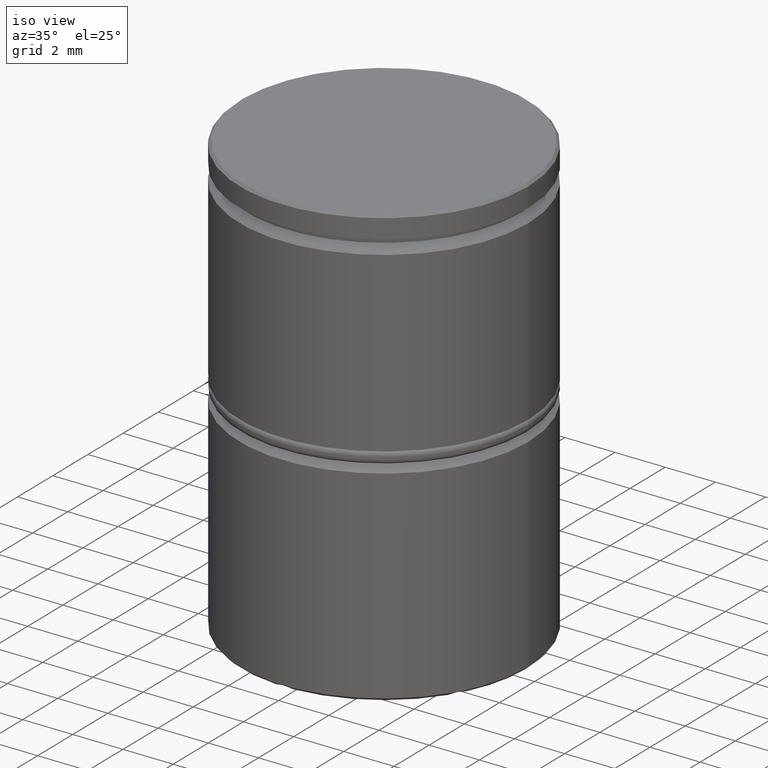
[diagram: clean part render]
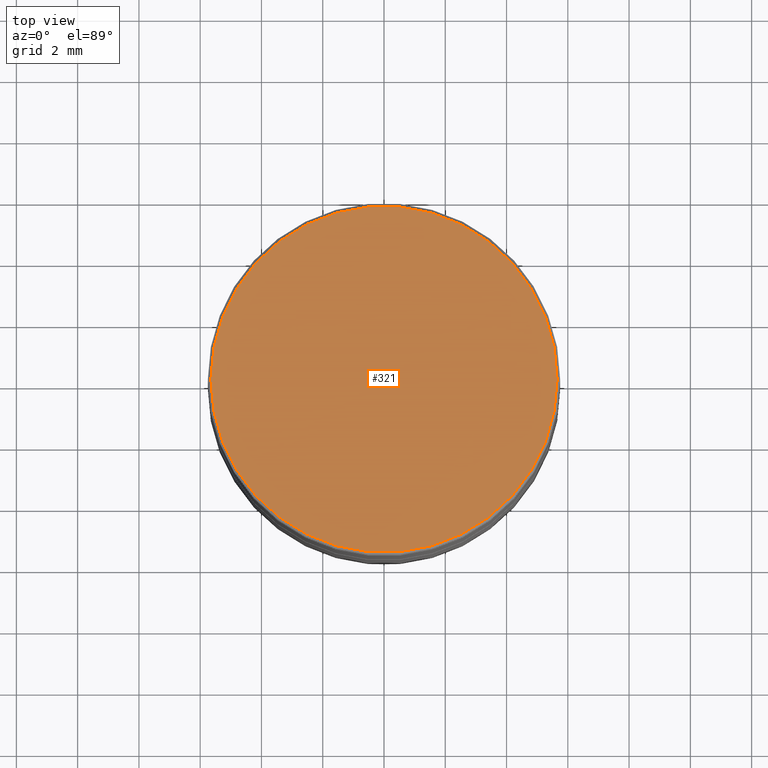
[diagram: tour spotlight — one face highlighted and labeled with its STEP entity id]
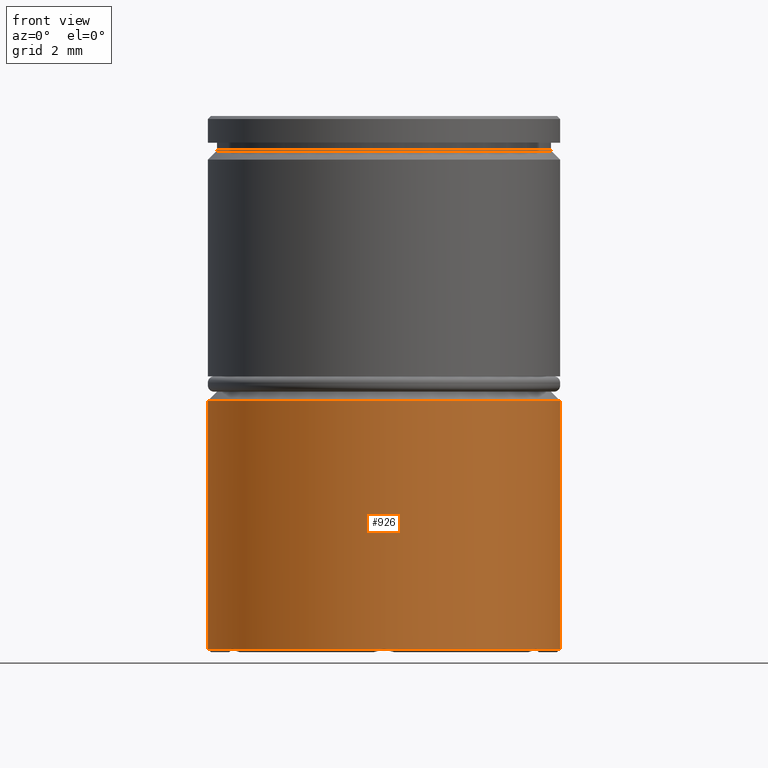
[diagram: tour spotlight — one face highlighted and labeled with its STEP entity id]
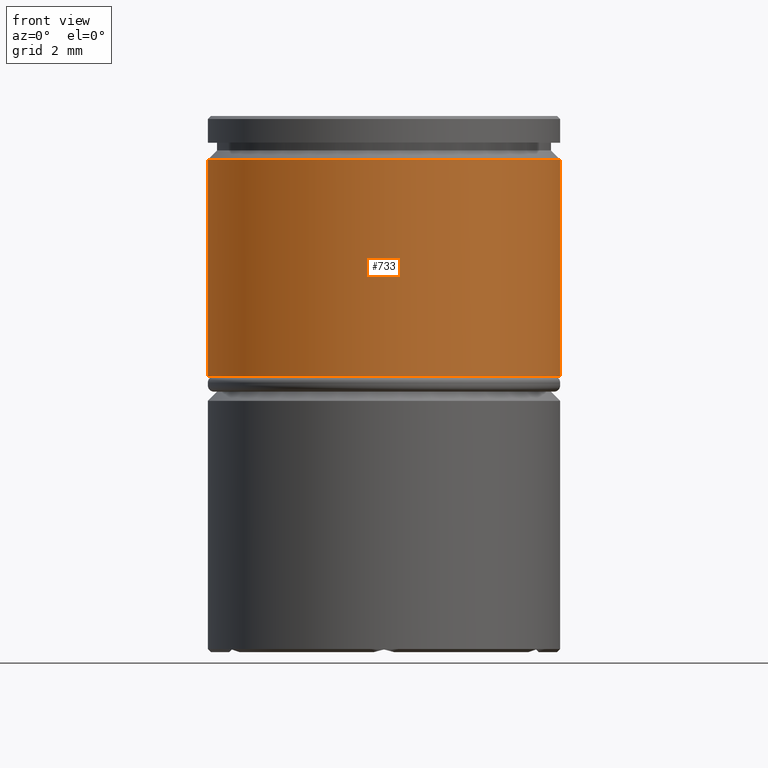
[diagram: tour spotlight — one face highlighted and labeled with its STEP entity id]
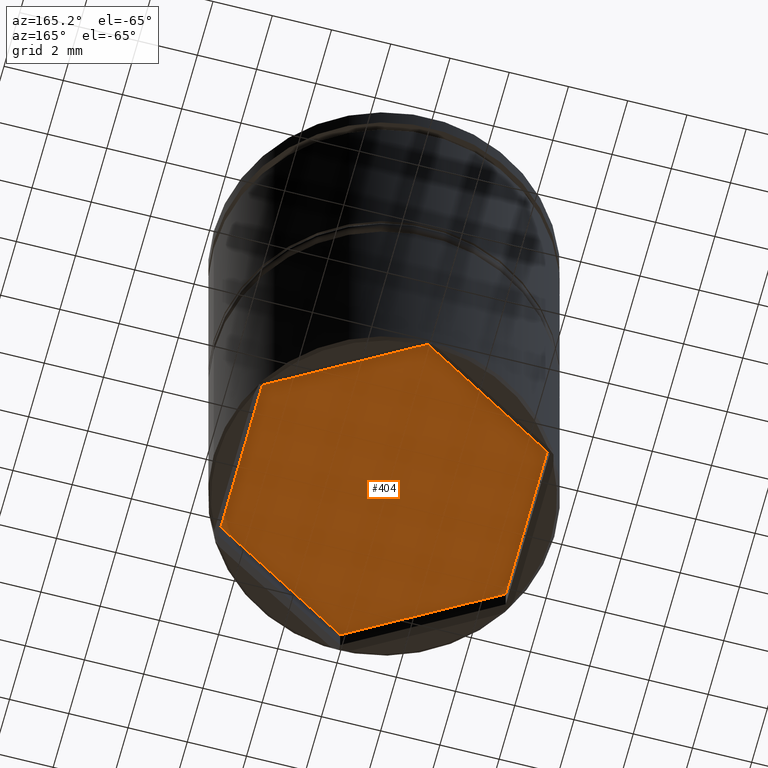
[diagram: tour spotlight — one face highlighted and labeled with its STEP entity id]
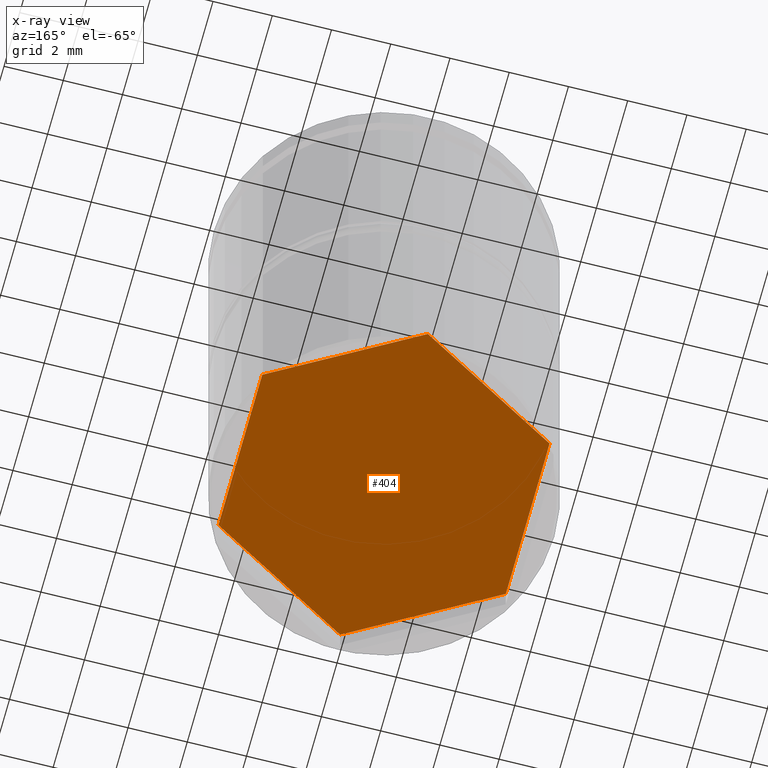
[diagram: x-ray of the same camera — body ghosted, this tour face saturated]
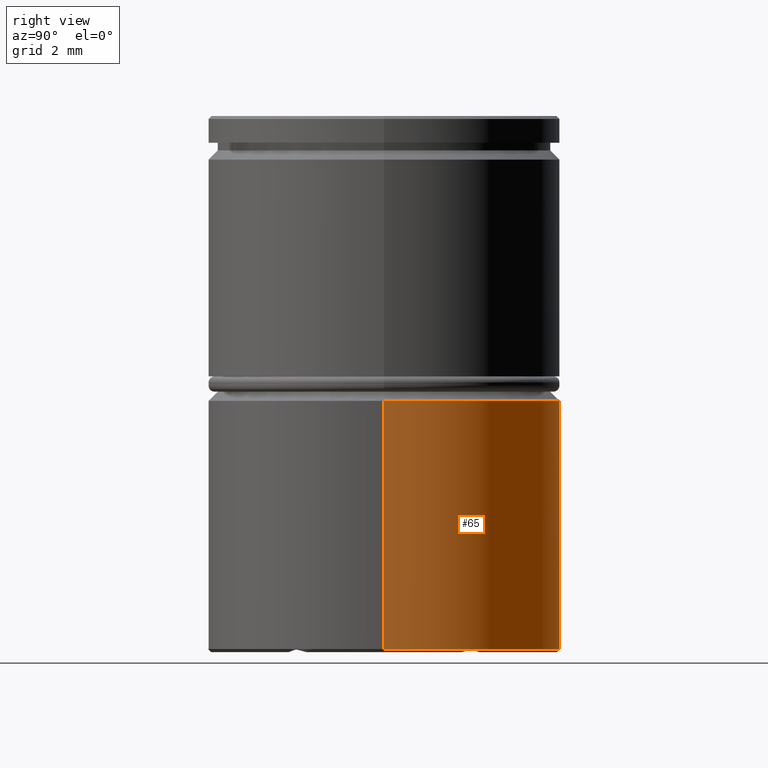
[diagram: tour spotlight — one face highlighted and labeled with its STEP entity id]
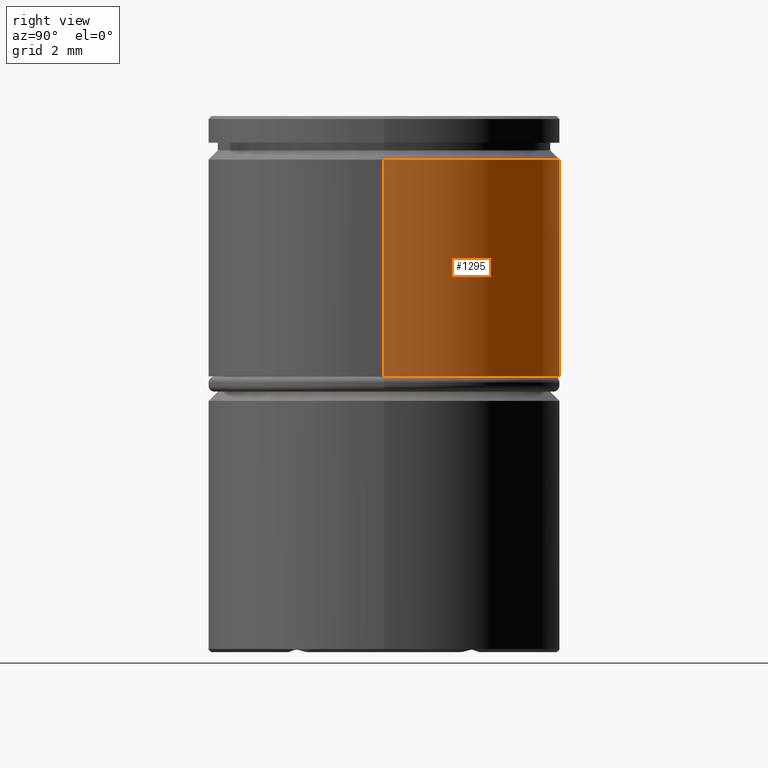
[diagram: tour spotlight — one face highlighted and labeled with its STEP entity id]
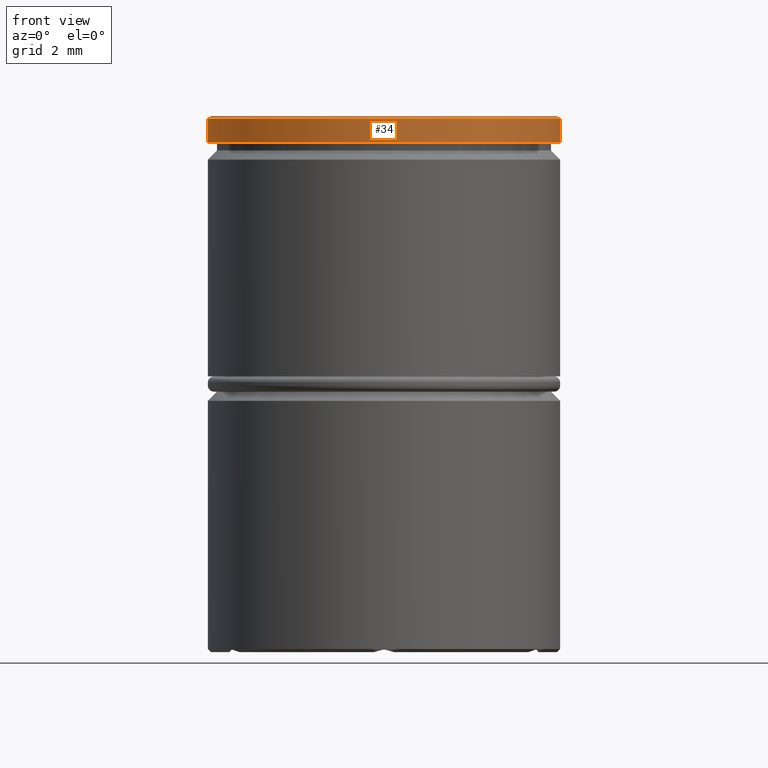
[diagram: tour spotlight — one face highlighted and labeled with its STEP entity id]
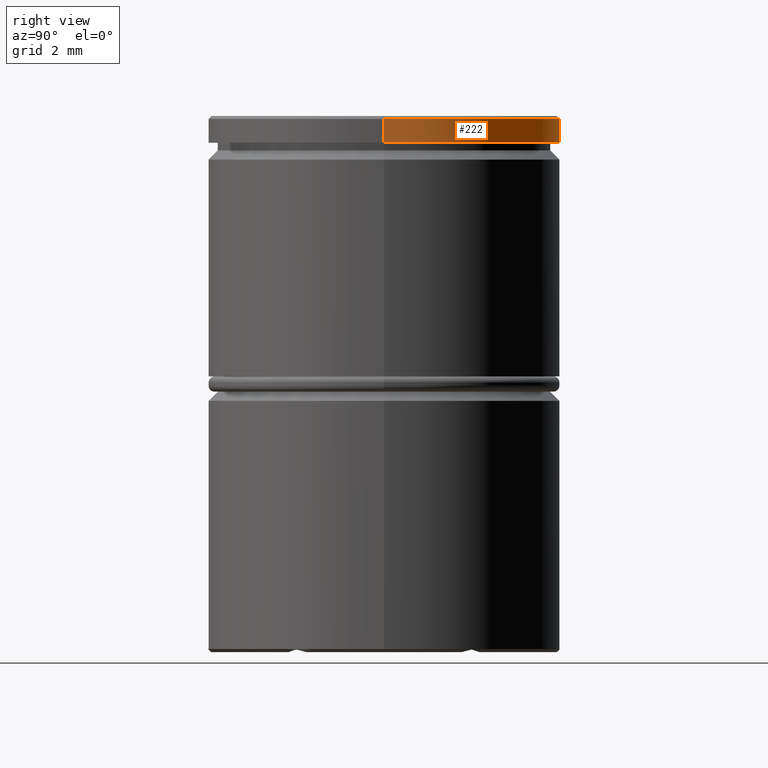
[diagram: tour spotlight — one face highlighted and labeled with its STEP entity id]
A machine part: a face-by-face anatomy tour. The part has 48 B-rep faces; the first image is the clean iso view, then the 8 largest visible faces are spotlighted one at a time (largest first), each with its STEP entity span.

Face 1 — top view, entity #321. In plain terms, the highlighted planar face has unit normal (0, -0, 1).
Definition (entity closure, byte-faithful):
#45 = DIRECTION ( 'NONE',  ( 1.000000000000000000, 0.000000000000000000, 0.000000000000000000 ) ) ;
#100 = DIRECTION ( 'NONE',  ( -0.000000000000000000, -0.000000000000000000, 1.000000000000000000 ) ) ;
#282 = EDGE_CURVE ( 'NONE', #290, #702, #1088, .T. ) ;
#290 = VERTEX_POINT ( 'NONE', #799 ) ;
#316 = PLANE ( 'NONE',  #839 ) ;
#321 = ADVANCED_FACE ( 'NONE', ( #606 ), #316, .T. ) ;
#390 = DIRECTION ( 'NONE',  ( 0.000000000000000000, -0.000000000000000000, 1.000000000000000000 ) ) ;
#423 = EDGE_CURVE ( 'NONE', #702, #290, #1191, .T. ) ;
#499 = AXIS2_PLACEMENT_3D ( 'NONE', #938, #100, #1358 ) ;
#576 = EDGE_LOOP ( 'NONE', ( #795, #759 ) ) ;
#606 = FACE_OUTER_BOUND ( 'NONE', #576, .T. ) ;
#702 = VERTEX_POINT ( 'NONE', #756 ) ;
#756 = CARTESIAN_POINT ( 'NONE',  ( 5.650000000000005684, 6.980486755139916067E-16, 0.000000000000000000 ) ) ;
#759 = ORIENTED_EDGE ( 'NONE', *, *, #423, .T. ) ;
#795 = ORIENTED_EDGE ( 'NONE', *, *, #282, .T. ) ;
#799 = CARTESIAN_POINT ( 'NONE',  ( -5.650000000000005684, 0.000000000000000000, 0.000000000000000000 ) ) ;
#839 = AXIS2_PLACEMENT_3D ( 'NONE', #1158, #390, #1371 ) ;
#938 = CARTESIAN_POINT ( 'NONE',  ( 0.000000000000000000, 0.000000000000000000, 0.000000000000000000 ) ) ;
#1015 = DIRECTION ( 'NONE',  ( -0.000000000000000000, -0.000000000000000000, 1.000000000000000000 ) ) ;
#1088 = CIRCLE ( 'NONE', #1133, 5.650000000000005684 ) ;
#1133 = AXIS2_PLACEMENT_3D ( 'NONE', #1212, #1015, #45 ) ;
#1158 = CARTESIAN_POINT ( 'NONE',  ( 0.000000000000000000, 0.000000000000000000, 0.000000000000000000 ) ) ;
#1191 = CIRCLE ( 'NONE', #499, 5.650000000000005684 ) ;
#1212 = CARTESIAN_POINT ( 'NONE',  ( 0.000000000000000000, 0.000000000000000000, 0.000000000000000000 ) ) ;
#1358 = DIRECTION ( 'NONE',  ( 1.000000000000000000, 0.000000000000000000, 0.000000000000000000 ) ) ;
#1371 = DIRECTION ( 'NONE',  ( 1.000000000000000000, 0.000000000000000000, 0.000000000000000000 ) ) ;

Face 2 — front view, entity #926. In plain terms, the highlighted cylindrical surface (partial cylindrical patch) has radius 5.75 mm, axis along (-0, -0, 1).
Definition (entity closure, byte-faithful):
#9 = CIRCLE ( 'NONE', #196, 5.750000000000000000 ) ;
#11 = VECTOR ( 'NONE', #459, 1000.000000000000000 ) ;
#26 = CARTESIAN_POINT ( 'NONE',  ( 5.750000000000000000, 0.000000000000000000, 0.000000000000000000 ) ) ;
#105 = VECTOR ( 'NONE', #320, 1000.000000000000000 ) ;
#144 = ORIENTED_EDGE ( 'NONE', *, *, #974, .T. ) ;
#176 = AXIS2_PLACEMENT_3D ( 'NONE', #1162, #329, #1089 ) ;
#183 = ORIENTED_EDGE ( 'NONE', *, *, #621, .T. ) ;
#196 = AXIS2_PLACEMENT_3D ( 'NONE', #383, #980, #905 ) ;
#208 = ORIENTED_EDGE ( 'NONE', *, *, #720, .F. ) ;
#221 = DIRECTION ( 'NONE',  ( 1.000000000000000000, 0.000000000000000000, 0.000000000000000000 ) ) ;
#320 = DIRECTION ( 'NONE',  ( -0.000000000000000000, -0.000000000000000000, 1.000000000000000000 ) ) ;
#329 = DIRECTION ( 'NONE',  ( 0.000000000000000000, 0.000000000000000000, -1.000000000000000000 ) ) ;
#379 = VERTEX_POINT ( 'NONE', #841 ) ;
#383 = CARTESIAN_POINT ( 'NONE',  ( 0.000000000000000000, 0.000000000000000000, -17.39999999999999858 ) ) ;
#440 = FACE_OUTER_BOUND ( 'NONE', #1132, .T. ) ;
#459 = DIRECTION ( 'NONE',  ( -0.000000000000000000, -0.000000000000000000, 1.000000000000000000 ) ) ;
#490 = VERTEX_POINT ( 'NONE', #1005 ) ;
#568 = LINE ( 'NONE', #26, #11 ) ;
#595 = CARTESIAN_POINT ( 'NONE',  ( 5.750000000000000000, 0.000000000000000000, -9.299999999999995381 ) ) ;
#621 = EDGE_CURVE ( 'NONE', #1228, #908, #1049, .T. ) ;
#629 = CARTESIAN_POINT ( 'NONE',  ( -5.750000000000000000, 7.041719095097280880E-16, 0.000000000000000000 ) ) ;
#637 = DIRECTION ( 'NONE',  ( -0.000000000000000000, -0.000000000000000000, 1.000000000000000000 ) ) ;
#666 = CARTESIAN_POINT ( 'NONE',  ( 0.000000000000000000, 0.000000000000000000, 0.000000000000000000 ) ) ;
#720 = EDGE_CURVE ( 'NONE', #379, #908, #1285, .T. ) ;
#841 = CARTESIAN_POINT ( 'NONE',  ( -5.750000000000000000, 7.041719095097280880E-16, -17.39999999999999858 ) ) ;
#905 = DIRECTION ( 'NONE',  ( -1.000000000000000000, 0.000000000000000000, 0.000000000000000000 ) ) ;
#908 = VERTEX_POINT ( 'NONE', #997 ) ;
#926 = ADVANCED_FACE ( 'NONE', ( #440 ), #1187, .T. ) ;
#973 = ORIENTED_EDGE ( 'NONE', *, *, #1069, .T. ) ;
#974 = EDGE_CURVE ( 'NONE', #379, #490, #9, .T. ) ;
#980 = DIRECTION ( 'NONE',  ( -0.000000000000000000, -0.000000000000000000, 1.000000000000000000 ) ) ;
#997 = CARTESIAN_POINT ( 'NONE',  ( -5.750000000000000000, 7.041719095097280880E-16, -9.299999999999995381 ) ) ;
#1005 = CARTESIAN_POINT ( 'NONE',  ( 5.750000000000000000, 0.000000000000000000, -17.39999999999999858 ) ) ;
#1049 = CIRCLE ( 'NONE', #176, 5.750000000000000000 ) ;
#1069 = EDGE_CURVE ( 'NONE', #490, #1228, #568, .T. ) ;
#1089 = DIRECTION ( 'NONE',  ( 1.000000000000000000, 0.000000000000000000, 0.000000000000000000 ) ) ;
#1132 = EDGE_LOOP ( 'NONE', ( #208, #144, #973, #183 ) ) ;
#1162 = CARTESIAN_POINT ( 'NONE',  ( 0.000000000000000000, 0.000000000000000000, -9.299999999999995381 ) ) ;
#1187 = CYLINDRICAL_SURFACE ( 'NONE', #1350, 5.750000000000000000 ) ;
#1228 = VERTEX_POINT ( 'NONE', #595 ) ;
#1285 = LINE ( 'NONE', #629, #105 ) ;
#1350 = AXIS2_PLACEMENT_3D ( 'NONE', #666, #637, #221 ) ;

Face 3 — front view, entity #733. In plain terms, the highlighted cylindrical surface (partial cylindrical patch) has radius 5.75 mm, axis along (-0, -0, 1).
Definition (entity closure, byte-faithful):
#7 = DIRECTION ( 'NONE',  ( 1.000000000000000000, 0.000000000000000000, 0.000000000000000000 ) ) ;
#55 = AXIS2_PLACEMENT_3D ( 'NONE', #781, #923, #263 ) ;
#73 = EDGE_LOOP ( 'NONE', ( #984, #873, #1359, #1220 ) ) ;
#181 = DIRECTION ( 'NONE',  ( 1.000000000000000000, 0.000000000000000000, 0.000000000000000000 ) ) ;
#254 = VERTEX_POINT ( 'NONE', #1006 ) ;
#263 = DIRECTION ( 'NONE',  ( 1.000000000000000000, 0.000000000000000000, 0.000000000000000000 ) ) ;
#284 = CIRCLE ( 'NONE', #55, 5.750000000000000000 ) ;
#466 = CARTESIAN_POINT ( 'NONE',  ( 5.750000000000000000, 0.000000000000000000, 0.000000000000000000 ) ) ;
#527 = VERTEX_POINT ( 'NONE', #937 ) ;
#589 = CARTESIAN_POINT ( 'NONE',  ( -5.750000000000000000, 7.041719095097280880E-16, -1.424999999999994937 ) ) ;
#608 = LINE ( 'NONE', #466, #831 ) ;
#648 = CIRCLE ( 'NONE', #1338, 5.750000000000000000 ) ;
#722 = CARTESIAN_POINT ( 'NONE',  ( 5.750000000000000000, 0.000000000000000000, -8.500000000000000000 ) ) ;
#733 = ADVANCED_FACE ( 'NONE', ( #957 ), #975, .T. ) ;
#781 = CARTESIAN_POINT ( 'NONE',  ( 0.000000000000000000, 0.000000000000000000, -8.500000000000000000 ) ) ;
#808 = DIRECTION ( 'NONE',  ( -0.000000000000000000, -0.000000000000000000, 1.000000000000000000 ) ) ;
#826 = LINE ( 'NONE', #1334, #1211 ) ;
#831 = VECTOR ( 'NONE', #1316, 1000.000000000000000 ) ;
#856 = EDGE_CURVE ( 'NONE', #527, #1304, #284, .T. ) ;
#865 = EDGE_CURVE ( 'NONE', #527, #1180, #826, .T. ) ;
#873 = ORIENTED_EDGE ( 'NONE', *, *, #856, .T. ) ;
#897 = CARTESIAN_POINT ( 'NONE',  ( 0.000000000000000000, 0.000000000000000000, -1.424999999999994937 ) ) ;
#923 = DIRECTION ( 'NONE',  ( -0.000000000000000000, -0.000000000000000000, 1.000000000000000000 ) ) ;
#937 = CARTESIAN_POINT ( 'NONE',  ( -5.750000000000000000, 7.041719095097280880E-16, -8.500000000000000000 ) ) ;
#957 = FACE_OUTER_BOUND ( 'NONE', #73, .T. ) ;
#975 = CYLINDRICAL_SURFACE ( 'NONE', #1192, 5.750000000000000000 ) ;
#984 = ORIENTED_EDGE ( 'NONE', *, *, #865, .F. ) ;
#1006 = CARTESIAN_POINT ( 'NONE',  ( 5.750000000000000000, 0.000000000000000000, -1.424999999999994937 ) ) ;
#1080 = CARTESIAN_POINT ( 'NONE',  ( 0.000000000000000000, 0.000000000000000000, 0.000000000000000000 ) ) ;
#1147 = DIRECTION ( 'NONE',  ( 0.000000000000000000, 0.000000000000000000, -1.000000000000000000 ) ) ;
#1180 = VERTEX_POINT ( 'NONE', #589 ) ;
#1192 = AXIS2_PLACEMENT_3D ( 'NONE', #1080, #1263, #7 ) ;
#1210 = EDGE_CURVE ( 'NONE', #254, #1180, #648, .T. ) ;
#1211 = VECTOR ( 'NONE', #808, 1000.000000000000000 ) ;
#1220 = ORIENTED_EDGE ( 'NONE', *, *, #1210, .T. ) ;
#1245 = EDGE_CURVE ( 'NONE', #1304, #254, #608, .T. ) ;
#1263 = DIRECTION ( 'NONE',  ( -0.000000000000000000, -0.000000000000000000, 1.000000000000000000 ) ) ;
#1304 = VERTEX_POINT ( 'NONE', #722 ) ;
#1316 = DIRECTION ( 'NONE',  ( -0.000000000000000000, -0.000000000000000000, 1.000000000000000000 ) ) ;
#1334 = CARTESIAN_POINT ( 'NONE',  ( -5.750000000000000000, 7.041719095097280880E-16, 0.000000000000000000 ) ) ;
#1338 = AXIS2_PLACEMENT_3D ( 'NONE', #897, #1147, #181 ) ;
#1359 = ORIENTED_EDGE ( 'NONE', *, *, #1245, .T. ) ;

Face 4 — auxiliary view, entity #404. An x-ray twin of the same camera follows (body ghosted, this face saturated) — the face is partly hidden behind the body. In plain terms, the highlighted planar face has unit normal (0, 0, -1).
Definition (entity closure, byte-faithful):
#70 = VECTOR ( 'NONE', #1267, 1000.000000000000000 ) ;
#94 = EDGE_CURVE ( 'NONE', #1149, #580, #506, .T. ) ;
#134 = EDGE_CURVE ( 'NONE', #580, #818, #1153, .T. ) ;
#218 = ORIENTED_EDGE ( 'NONE', *, *, #94, .T. ) ;
#275 = ORIENTED_EDGE ( 'NONE', *, *, #601, .T. ) ;
#298 = DIRECTION ( 'NONE',  ( 0.8660254037844387076, -0.4999999999999998890, 0.000000000000000000 ) ) ;
#330 = CARTESIAN_POINT ( 'NONE',  ( 4.849999999999996980, 2.800148805569681265, -16.50000000000000000 ) ) ;
#376 = VECTOR ( 'NONE', #298, 1000.000000000000114 ) ;
#404 = ADVANCED_FACE ( 'NONE', ( #1348 ), #946, .T. ) ;
#407 = DIRECTION ( 'NONE',  ( -0.8660254037844387076, -0.4999999999999997780, 0.000000000000000000 ) ) ;
#443 = CARTESIAN_POINT ( 'NONE',  ( 4.849999999999996980, 2.800148805569681265, -16.50000000000000000 ) ) ;
#458 = CARTESIAN_POINT ( 'NONE',  ( -4.849999999999996980, -2.800148805569682153, -16.50000000000000000 ) ) ;
#462 = CARTESIAN_POINT ( 'NONE',  ( 0.000000000000000000, 5.600297611139363418, -16.50000000000000000 ) ) ;
#476 = VECTOR ( 'NONE', #669, 1000.000000000000000 ) ;
#489 = CARTESIAN_POINT ( 'NONE',  ( 4.849999999999996980, -2.800148805569683486, -16.50000000000000000 ) ) ;
#496 = VERTEX_POINT ( 'NONE', #462 ) ;
#506 = LINE ( 'NONE', #1369, #1156 ) ;
#525 = DIRECTION ( 'NONE',  ( -0.8660254037844385966, 0.5000000000000000000, 0.000000000000000000 ) ) ;
#530 = CARTESIAN_POINT ( 'NONE',  ( -4.849999999999996980, 2.800148805569683486, -16.50000000000000000 ) ) ;
#533 = ORIENTED_EDGE ( 'NONE', *, *, #1372, .T. ) ;
#540 = LINE ( 'NONE', #443, #567 ) ;
#567 = VECTOR ( 'NONE', #734, 1000.000000000000000 ) ;
#580 = VERTEX_POINT ( 'NONE', #1275 ) ;
#601 = EDGE_CURVE ( 'NONE', #922, #1149, #540, .T. ) ;
#669 = DIRECTION ( 'NONE',  ( 0.000000000000000000, 1.000000000000000000, 0.000000000000000000 ) ) ;
#696 = VERTEX_POINT ( 'NONE', #976 ) ;
#703 = ORIENTED_EDGE ( 'NONE', *, *, #134, .T. ) ;
#734 = DIRECTION ( 'NONE',  ( 0.000000000000000000, -1.000000000000000000, 0.000000000000000000 ) ) ;
#770 = CARTESIAN_POINT ( 'NONE',  ( -4.849999999999996980, -2.800148805569682153, -16.50000000000000000 ) ) ;
#818 = VERTEX_POINT ( 'NONE', #770 ) ;
#829 = ORIENTED_EDGE ( 'NONE', *, *, #1366, .T. ) ;
#843 = EDGE_CURVE ( 'NONE', #818, #696, #1310, .T. ) ;
#922 = VERTEX_POINT ( 'NONE', #330 ) ;
#929 = CARTESIAN_POINT ( 'NONE',  ( 0.000000000000000000, 0.000000000000000000, -16.50000000000000000 ) ) ;
#934 = AXIS2_PLACEMENT_3D ( 'NONE', #929, #1165, #1237 ) ;
#941 = CARTESIAN_POINT ( 'NONE',  ( 2.666455773353224131E-18, -5.600297611139365195, -16.50000000000000000 ) ) ;
#946 = PLANE ( 'NONE',  #934 ) ;
#976 = CARTESIAN_POINT ( 'NONE',  ( -4.849999999999996980, 2.800148805569683486, -16.50000000000000000 ) ) ;
#1127 = EDGE_LOOP ( 'NONE', ( #829, #533, #275, #218, #703, #1213 ) ) ;
#1149 = VERTEX_POINT ( 'NONE', #489 ) ;
#1153 = LINE ( 'NONE', #941, #1193 ) ;
#1156 = VECTOR ( 'NONE', #407, 1000.000000000000114 ) ;
#1165 = DIRECTION ( 'NONE',  ( 0.000000000000000000, 0.000000000000000000, -1.000000000000000000 ) ) ;
#1193 = VECTOR ( 'NONE', #525, 1000.000000000000227 ) ;
#1213 = ORIENTED_EDGE ( 'NONE', *, *, #843, .T. ) ;
#1237 = DIRECTION ( 'NONE',  ( -1.000000000000000000, 0.000000000000000000, -0.000000000000000000 ) ) ;
#1247 = LINE ( 'NONE', #1272, #376 ) ;
#1267 = DIRECTION ( 'NONE',  ( 0.8660254037844389297, 0.4999999999999996114, 0.000000000000000000 ) ) ;
#1272 = CARTESIAN_POINT ( 'NONE',  ( 0.000000000000000000, 5.600297611139363418, -16.50000000000000000 ) ) ;
#1275 = CARTESIAN_POINT ( 'NONE',  ( 2.666455773353224131E-18, -5.600297611139365195, -16.50000000000000000 ) ) ;
#1310 = LINE ( 'NONE', #458, #476 ) ;
#1348 = FACE_OUTER_BOUND ( 'NONE', #1127, .T. ) ;
#1366 = EDGE_CURVE ( 'NONE', #696, #496, #1373, .T. ) ;
#1369 = CARTESIAN_POINT ( 'NONE',  ( 4.849999999999996980, -2.800148805569683486, -16.50000000000000000 ) ) ;
#1372 = EDGE_CURVE ( 'NONE', #496, #922, #1247, .T. ) ;
#1373 = LINE ( 'NONE', #530, #70 ) ;

Face 5 — right view, entity #65. In plain terms, the highlighted cylindrical surface (partial cylindrical patch) has radius 5.75 mm, axis along (-0, -0, 1).
Definition (entity closure, byte-faithful):
#11 = VECTOR ( 'NONE', #459, 1000.000000000000000 ) ;
#18 = DIRECTION ( 'NONE',  ( -1.000000000000000000, 0.000000000000000000, 0.000000000000000000 ) ) ;
#26 = CARTESIAN_POINT ( 'NONE',  ( 5.750000000000000000, 0.000000000000000000, 0.000000000000000000 ) ) ;
#65 = ADVANCED_FACE ( 'NONE', ( #192 ), #1160, .T. ) ;
#90 = DIRECTION ( 'NONE',  ( 1.000000000000000000, 0.000000000000000000, 0.000000000000000000 ) ) ;
#105 = VECTOR ( 'NONE', #320, 1000.000000000000000 ) ;
#137 = ORIENTED_EDGE ( 'NONE', *, *, #952, .T. ) ;
#192 = FACE_OUTER_BOUND ( 'NONE', #675, .T. ) ;
#214 = CARTESIAN_POINT ( 'NONE',  ( 0.000000000000000000, 0.000000000000000000, 0.000000000000000000 ) ) ;
#299 = DIRECTION ( 'NONE',  ( -0.000000000000000000, -0.000000000000000000, 1.000000000000000000 ) ) ;
#320 = DIRECTION ( 'NONE',  ( -0.000000000000000000, -0.000000000000000000, 1.000000000000000000 ) ) ;
#379 = VERTEX_POINT ( 'NONE', #841 ) ;
#402 = DIRECTION ( 'NONE',  ( 1.000000000000000000, 0.000000000000000000, 0.000000000000000000 ) ) ;
#459 = DIRECTION ( 'NONE',  ( -0.000000000000000000, -0.000000000000000000, 1.000000000000000000 ) ) ;
#490 = VERTEX_POINT ( 'NONE', #1005 ) ;
#568 = LINE ( 'NONE', #26, #11 ) ;
#595 = CARTESIAN_POINT ( 'NONE',  ( 5.750000000000000000, 0.000000000000000000, -9.299999999999995381 ) ) ;
#629 = CARTESIAN_POINT ( 'NONE',  ( -5.750000000000000000, 7.041719095097280880E-16, 0.000000000000000000 ) ) ;
#636 = CIRCLE ( 'NONE', #659, 5.750000000000000000 ) ;
#659 = AXIS2_PLACEMENT_3D ( 'NONE', #1086, #762, #18 ) ;
#675 = EDGE_LOOP ( 'NONE', ( #1046, #1238, #137, #811 ) ) ;
#720 = EDGE_CURVE ( 'NONE', #379, #908, #1285, .T. ) ;
#725 = DIRECTION ( 'NONE',  ( 0.000000000000000000, 0.000000000000000000, -1.000000000000000000 ) ) ;
#751 = CIRCLE ( 'NONE', #935, 5.750000000000000000 ) ;
#762 = DIRECTION ( 'NONE',  ( -0.000000000000000000, -0.000000000000000000, 1.000000000000000000 ) ) ;
#768 = EDGE_CURVE ( 'NONE', #490, #379, #636, .T. ) ;
#811 = ORIENTED_EDGE ( 'NONE', *, *, #1069, .F. ) ;
#841 = CARTESIAN_POINT ( 'NONE',  ( -5.750000000000000000, 7.041719095097280880E-16, -17.39999999999999858 ) ) ;
#908 = VERTEX_POINT ( 'NONE', #997 ) ;
#935 = AXIS2_PLACEMENT_3D ( 'NONE', #1363, #725, #90 ) ;
#952 = EDGE_CURVE ( 'NONE', #908, #1228, #751, .T. ) ;
#997 = CARTESIAN_POINT ( 'NONE',  ( -5.750000000000000000, 7.041719095097280880E-16, -9.299999999999995381 ) ) ;
#1005 = CARTESIAN_POINT ( 'NONE',  ( 5.750000000000000000, 0.000000000000000000, -17.39999999999999858 ) ) ;
#1046 = ORIENTED_EDGE ( 'NONE', *, *, #768, .T. ) ;
#1069 = EDGE_CURVE ( 'NONE', #490, #1228, #568, .T. ) ;
#1086 = CARTESIAN_POINT ( 'NONE',  ( 0.000000000000000000, 0.000000000000000000, -17.39999999999999858 ) ) ;
#1160 = CYLINDRICAL_SURFACE ( 'NONE', #1278, 5.750000000000000000 ) ;
#1228 = VERTEX_POINT ( 'NONE', #595 ) ;
#1238 = ORIENTED_EDGE ( 'NONE', *, *, #720, .T. ) ;
#1278 = AXIS2_PLACEMENT_3D ( 'NONE', #214, #299, #402 ) ;
#1285 = LINE ( 'NONE', #629, #105 ) ;
#1363 = CARTESIAN_POINT ( 'NONE',  ( 0.000000000000000000, 0.000000000000000000, -9.299999999999995381 ) ) ;

Face 6 — right view, entity #1295. In plain terms, the highlighted cylindrical surface (partial cylindrical patch) has radius 5.75 mm, axis along (-0, -0, 1).
Definition (entity closure, byte-faithful):
#164 = AXIS2_PLACEMENT_3D ( 'NONE', #836, #736, #832 ) ;
#213 = CYLINDRICAL_SURFACE ( 'NONE', #164, 5.750000000000000000 ) ;
#254 = VERTEX_POINT ( 'NONE', #1006 ) ;
#267 = DIRECTION ( 'NONE',  ( -0.000000000000000000, -0.000000000000000000, 1.000000000000000000 ) ) ;
#345 = ORIENTED_EDGE ( 'NONE', *, *, #865, .T. ) ;
#347 = AXIS2_PLACEMENT_3D ( 'NONE', #1010, #267, #796 ) ;
#455 = CIRCLE ( 'NONE', #347, 5.750000000000000000 ) ;
#466 = CARTESIAN_POINT ( 'NONE',  ( 5.750000000000000000, 0.000000000000000000, 0.000000000000000000 ) ) ;
#523 = CIRCLE ( 'NONE', #1323, 5.750000000000000000 ) ;
#527 = VERTEX_POINT ( 'NONE', #937 ) ;
#541 = EDGE_LOOP ( 'NONE', ( #1122, #345, #991, #918 ) ) ;
#589 = CARTESIAN_POINT ( 'NONE',  ( -5.750000000000000000, 7.041719095097280880E-16, -1.424999999999994937 ) ) ;
#608 = LINE ( 'NONE', #466, #831 ) ;
#618 = FACE_OUTER_BOUND ( 'NONE', #541, .T. ) ;
#722 = CARTESIAN_POINT ( 'NONE',  ( 5.750000000000000000, 0.000000000000000000, -8.500000000000000000 ) ) ;
#736 = DIRECTION ( 'NONE',  ( -0.000000000000000000, -0.000000000000000000, 1.000000000000000000 ) ) ;
#748 = DIRECTION ( 'NONE',  ( 0.000000000000000000, 0.000000000000000000, -1.000000000000000000 ) ) ;
#758 = EDGE_CURVE ( 'NONE', #1180, #254, #523, .T. ) ;
#796 = DIRECTION ( 'NONE',  ( 1.000000000000000000, 0.000000000000000000, 0.000000000000000000 ) ) ;
#808 = DIRECTION ( 'NONE',  ( -0.000000000000000000, -0.000000000000000000, 1.000000000000000000 ) ) ;
#826 = LINE ( 'NONE', #1334, #1211 ) ;
#831 = VECTOR ( 'NONE', #1316, 1000.000000000000000 ) ;
#832 = DIRECTION ( 'NONE',  ( 1.000000000000000000, 0.000000000000000000, 0.000000000000000000 ) ) ;
#836 = CARTESIAN_POINT ( 'NONE',  ( 0.000000000000000000, 0.000000000000000000, 0.000000000000000000 ) ) ;
#865 = EDGE_CURVE ( 'NONE', #527, #1180, #826, .T. ) ;
#892 = EDGE_CURVE ( 'NONE', #1304, #527, #455, .T. ) ;
#918 = ORIENTED_EDGE ( 'NONE', *, *, #1245, .F. ) ;
#937 = CARTESIAN_POINT ( 'NONE',  ( -5.750000000000000000, 7.041719095097280880E-16, -8.500000000000000000 ) ) ;
#991 = ORIENTED_EDGE ( 'NONE', *, *, #758, .T. ) ;
#1006 = CARTESIAN_POINT ( 'NONE',  ( 5.750000000000000000, 0.000000000000000000, -1.424999999999994937 ) ) ;
#1010 = CARTESIAN_POINT ( 'NONE',  ( 0.000000000000000000, 0.000000000000000000, -8.500000000000000000 ) ) ;
#1122 = ORIENTED_EDGE ( 'NONE', *, *, #892, .T. ) ;
#1175 = DIRECTION ( 'NONE',  ( 1.000000000000000000, 0.000000000000000000, 0.000000000000000000 ) ) ;
#1180 = VERTEX_POINT ( 'NONE', #589 ) ;
#1211 = VECTOR ( 'NONE', #808, 1000.000000000000000 ) ;
#1245 = EDGE_CURVE ( 'NONE', #1304, #254, #608, .T. ) ;
#1271 = CARTESIAN_POINT ( 'NONE',  ( 0.000000000000000000, 0.000000000000000000, -1.424999999999994937 ) ) ;
#1295 = ADVANCED_FACE ( 'NONE', ( #618 ), #213, .T. ) ;
#1304 = VERTEX_POINT ( 'NONE', #722 ) ;
#1316 = DIRECTION ( 'NONE',  ( -0.000000000000000000, -0.000000000000000000, 1.000000000000000000 ) ) ;
#1323 = AXIS2_PLACEMENT_3D ( 'NONE', #1271, #748, #1175 ) ;
#1334 = CARTESIAN_POINT ( 'NONE',  ( -5.750000000000000000, 7.041719095097280880E-16, 0.000000000000000000 ) ) ;

Face 7 — front view, entity #34. In plain terms, the highlighted cylindrical surface (partial cylindrical patch) has radius 5.75 mm, axis along (-0, -0, 1).
Definition (entity closure, byte-faithful):
#10 = EDGE_CURVE ( 'NONE', #454, #1042, #155, .T. ) ;
#34 = ADVANCED_FACE ( 'NONE', ( #111 ), #955, .T. ) ;
#57 = ORIENTED_EDGE ( 'NONE', *, *, #204, .T. ) ;
#71 = CARTESIAN_POINT ( 'NONE',  ( -5.750000000000000000, 7.041719095097280880E-16, -0.8749999999999998890 ) ) ;
#111 = FACE_OUTER_BOUND ( 'NONE', #187, .T. ) ;
#152 = VECTOR ( 'NONE', #623, 1000.000000000000000 ) ;
#155 = CIRCLE ( 'NONE', #640, 5.750000000000000000 ) ;
#187 = EDGE_LOOP ( 'NONE', ( #599, #395, #607, #57 ) ) ;
#204 = EDGE_CURVE ( 'NONE', #391, #932, #822, .T. ) ;
#224 = CARTESIAN_POINT ( 'NONE',  ( 0.000000000000000000, 0.000000000000000000, -0.09999999999999506506 ) ) ;
#239 = DIRECTION ( 'NONE',  ( -0.000000000000000000, -0.000000000000000000, 1.000000000000000000 ) ) ;
#308 = CARTESIAN_POINT ( 'NONE',  ( 5.750000000000000000, 0.000000000000000000, -0.09999999999999506506 ) ) ;
#331 = CARTESIAN_POINT ( 'NONE',  ( 5.750000000000000000, 0.000000000000000000, -0.8749999999999998890 ) ) ;
#348 = LINE ( 'NONE', #779, #612 ) ;
#366 = EDGE_CURVE ( 'NONE', #1042, #391, #1144, .T. ) ;
#391 = VERTEX_POINT ( 'NONE', #308 ) ;
#395 = ORIENTED_EDGE ( 'NONE', *, *, #10, .T. ) ;
#396 = CARTESIAN_POINT ( 'NONE',  ( -5.750000000000000000, 7.041719095097280880E-16, -0.09999999999999506506 ) ) ;
#454 = VERTEX_POINT ( 'NONE', #71 ) ;
#509 = DIRECTION ( 'NONE',  ( 1.000000000000000000, 0.000000000000000000, 0.000000000000000000 ) ) ;
#599 = ORIENTED_EDGE ( 'NONE', *, *, #630, .F. ) ;
#607 = ORIENTED_EDGE ( 'NONE', *, *, #366, .T. ) ;
#612 = VECTOR ( 'NONE', #239, 1000.000000000000000 ) ;
#623 = DIRECTION ( 'NONE',  ( -0.000000000000000000, -0.000000000000000000, 1.000000000000000000 ) ) ;
#630 = EDGE_CURVE ( 'NONE', #454, #932, #348, .T. ) ;
#633 = CARTESIAN_POINT ( 'NONE',  ( 0.000000000000000000, 0.000000000000000000, 0.000000000000000000 ) ) ;
#640 = AXIS2_PLACEMENT_3D ( 'NONE', #710, #1141, #1317 ) ;
#710 = CARTESIAN_POINT ( 'NONE',  ( 0.000000000000000000, 0.000000000000000000, -0.8749999999999998890 ) ) ;
#728 = AXIS2_PLACEMENT_3D ( 'NONE', #224, #1201, #982 ) ;
#779 = CARTESIAN_POINT ( 'NONE',  ( -5.750000000000000000, 7.041719095097280880E-16, 0.000000000000000000 ) ) ;
#822 = CIRCLE ( 'NONE', #728, 5.750000000000000000 ) ;
#849 = DIRECTION ( 'NONE',  ( -0.000000000000000000, -0.000000000000000000, 1.000000000000000000 ) ) ;
#932 = VERTEX_POINT ( 'NONE', #396 ) ;
#955 = CYLINDRICAL_SURFACE ( 'NONE', #1116, 5.750000000000000000 ) ;
#982 = DIRECTION ( 'NONE',  ( 1.000000000000000000, 0.000000000000000000, 0.000000000000000000 ) ) ;
#1042 = VERTEX_POINT ( 'NONE', #331 ) ;
#1060 = CARTESIAN_POINT ( 'NONE',  ( 5.750000000000000000, 0.000000000000000000, 0.000000000000000000 ) ) ;
#1116 = AXIS2_PLACEMENT_3D ( 'NONE', #633, #849, #509 ) ;
#1141 = DIRECTION ( 'NONE',  ( -0.000000000000000000, -0.000000000000000000, 1.000000000000000000 ) ) ;
#1144 = LINE ( 'NONE', #1060, #152 ) ;
#1201 = DIRECTION ( 'NONE',  ( 0.000000000000000000, 0.000000000000000000, -1.000000000000000000 ) ) ;
#1317 = DIRECTION ( 'NONE',  ( 1.000000000000000000, 0.000000000000000000, 0.000000000000000000 ) ) ;

Face 8 — right view, entity #222. In plain terms, the highlighted cylindrical surface (partial cylindrical patch) has radius 5.75 mm, axis along (-0, -0, 1).
Definition (entity closure, byte-faithful):
#47 = CARTESIAN_POINT ( 'NONE',  ( 0.000000000000000000, 0.000000000000000000, -0.09999999999999506506 ) ) ;
#71 = CARTESIAN_POINT ( 'NONE',  ( -5.750000000000000000, 7.041719095097280880E-16, -0.8749999999999998890 ) ) ;
#143 = FACE_OUTER_BOUND ( 'NONE', #988, .T. ) ;
#152 = VECTOR ( 'NONE', #623, 1000.000000000000000 ) ;
#222 = ADVANCED_FACE ( 'NONE', ( #143 ), #1179, .T. ) ;
#239 = DIRECTION ( 'NONE',  ( -0.000000000000000000, -0.000000000000000000, 1.000000000000000000 ) ) ;
#258 = AXIS2_PLACEMENT_3D ( 'NONE', #512, #307, #1378 ) ;
#307 = DIRECTION ( 'NONE',  ( -0.000000000000000000, -0.000000000000000000, 1.000000000000000000 ) ) ;
#308 = CARTESIAN_POINT ( 'NONE',  ( 5.750000000000000000, 0.000000000000000000, -0.09999999999999506506 ) ) ;
#326 = CIRCLE ( 'NONE', #258, 5.750000000000000000 ) ;
#331 = CARTESIAN_POINT ( 'NONE',  ( 5.750000000000000000, 0.000000000000000000, -0.8749999999999998890 ) ) ;
#348 = LINE ( 'NONE', #779, #612 ) ;
#366 = EDGE_CURVE ( 'NONE', #1042, #391, #1144, .T. ) ;
#391 = VERTEX_POINT ( 'NONE', #308 ) ;
#396 = CARTESIAN_POINT ( 'NONE',  ( -5.750000000000000000, 7.041719095097280880E-16, -0.09999999999999506506 ) ) ;
#454 = VERTEX_POINT ( 'NONE', #71 ) ;
#472 = DIRECTION ( 'NONE',  ( 1.000000000000000000, 0.000000000000000000, 0.000000000000000000 ) ) ;
#512 = CARTESIAN_POINT ( 'NONE',  ( 0.000000000000000000, 0.000000000000000000, -0.8749999999999998890 ) ) ;
#582 = ORIENTED_EDGE ( 'NONE', *, *, #366, .F. ) ;
#596 = ORIENTED_EDGE ( 'NONE', *, *, #1262, .T. ) ;
#612 = VECTOR ( 'NONE', #239, 1000.000000000000000 ) ;
#623 = DIRECTION ( 'NONE',  ( -0.000000000000000000, -0.000000000000000000, 1.000000000000000000 ) ) ;
#630 = EDGE_CURVE ( 'NONE', #454, #932, #348, .T. ) ;
#642 = CARTESIAN_POINT ( 'NONE',  ( 0.000000000000000000, 0.000000000000000000, 0.000000000000000000 ) ) ;
#706 = EDGE_CURVE ( 'NONE', #1042, #454, #326, .T. ) ;
#738 = AXIS2_PLACEMENT_3D ( 'NONE', #47, #802, #472 ) ;
#766 = DIRECTION ( 'NONE',  ( 1.000000000000000000, 0.000000000000000000, 0.000000000000000000 ) ) ;
#779 = CARTESIAN_POINT ( 'NONE',  ( -5.750000000000000000, 7.041719095097280880E-16, 0.000000000000000000 ) ) ;
#802 = DIRECTION ( 'NONE',  ( 0.000000000000000000, 0.000000000000000000, -1.000000000000000000 ) ) ;
#932 = VERTEX_POINT ( 'NONE', #396 ) ;
#988 = EDGE_LOOP ( 'NONE', ( #1223, #1224, #596, #582 ) ) ;
#1042 = VERTEX_POINT ( 'NONE', #331 ) ;
#1060 = CARTESIAN_POINT ( 'NONE',  ( 5.750000000000000000, 0.000000000000000000, 0.000000000000000000 ) ) ;
#1144 = LINE ( 'NONE', #1060, #152 ) ;
#1179 = CYLINDRICAL_SURFACE ( 'NONE', #1319, 5.750000000000000000 ) ;
#1223 = ORIENTED_EDGE ( 'NONE', *, *, #706, .T. ) ;
#1224 = ORIENTED_EDGE ( 'NONE', *, *, #630, .T. ) ;
#1262 = EDGE_CURVE ( 'NONE', #932, #391, #1365, .T. ) ;
#1289 = DIRECTION ( 'NONE',  ( -0.000000000000000000, -0.000000000000000000, 1.000000000000000000 ) ) ;
#1319 = AXIS2_PLACEMENT_3D ( 'NONE', #642, #1289, #766 ) ;
#1365 = CIRCLE ( 'NONE', #738, 5.750000000000000000 ) ;
#1378 = DIRECTION ( 'NONE',  ( 1.000000000000000000, 0.000000000000000000, 0.000000000000000000 ) ) ;